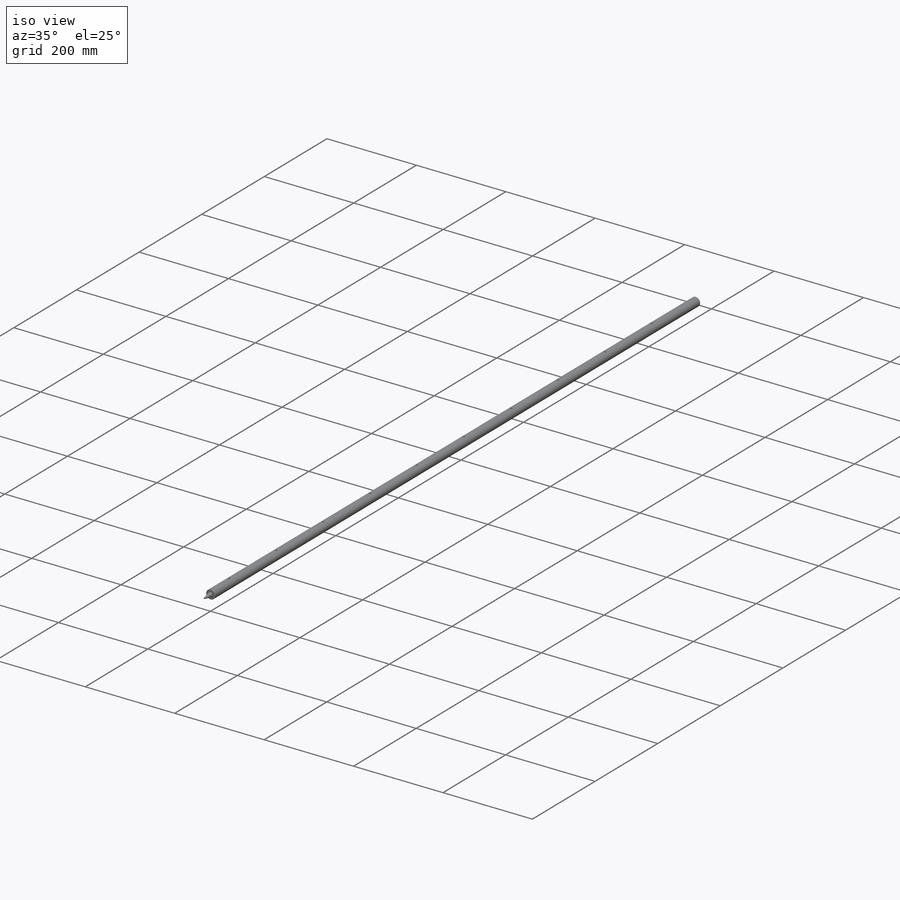
[diagram: iso view]
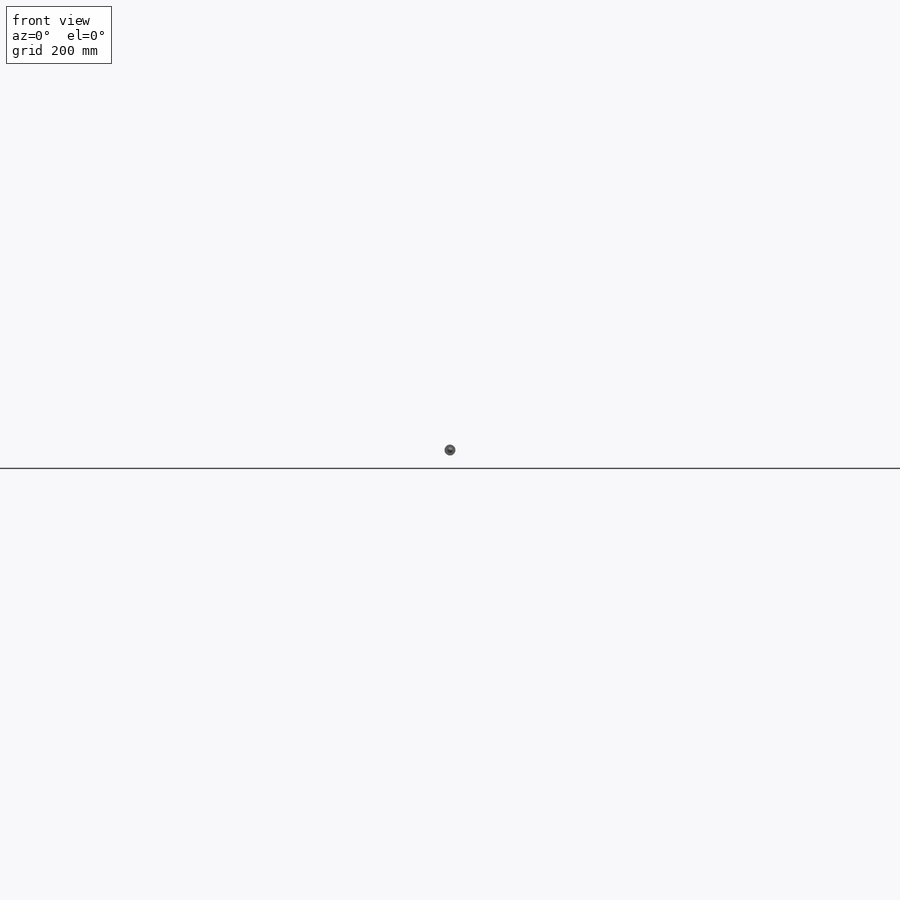
[diagram: front view]
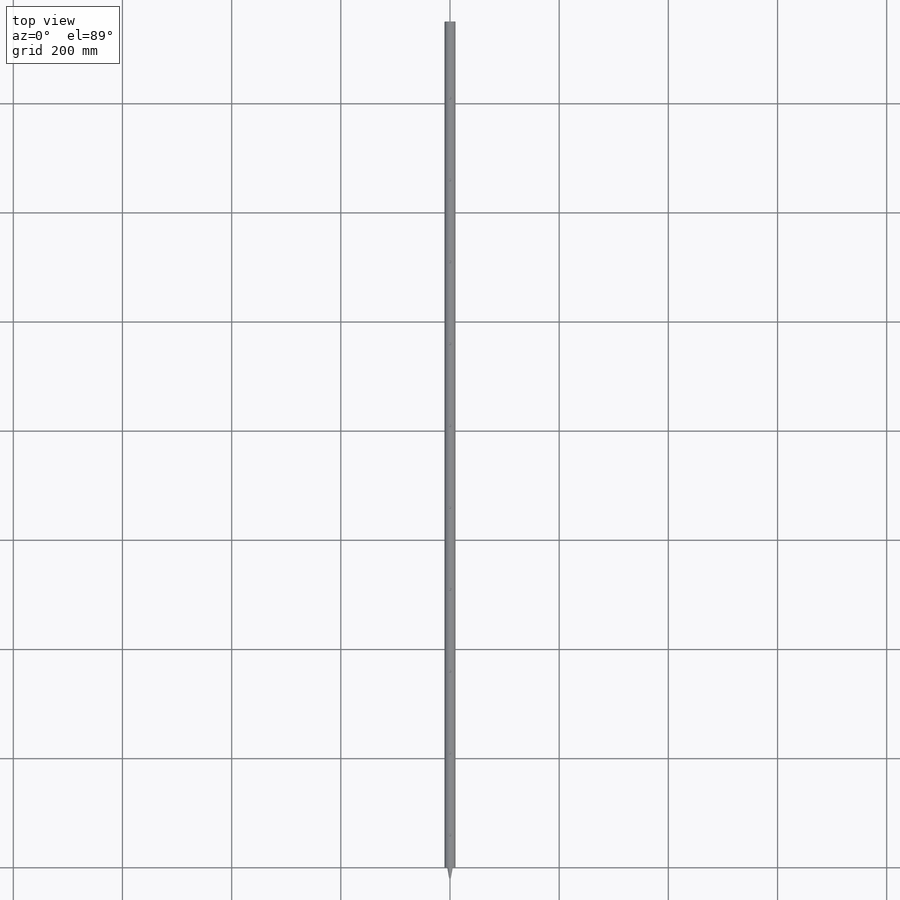
[diagram: top view]
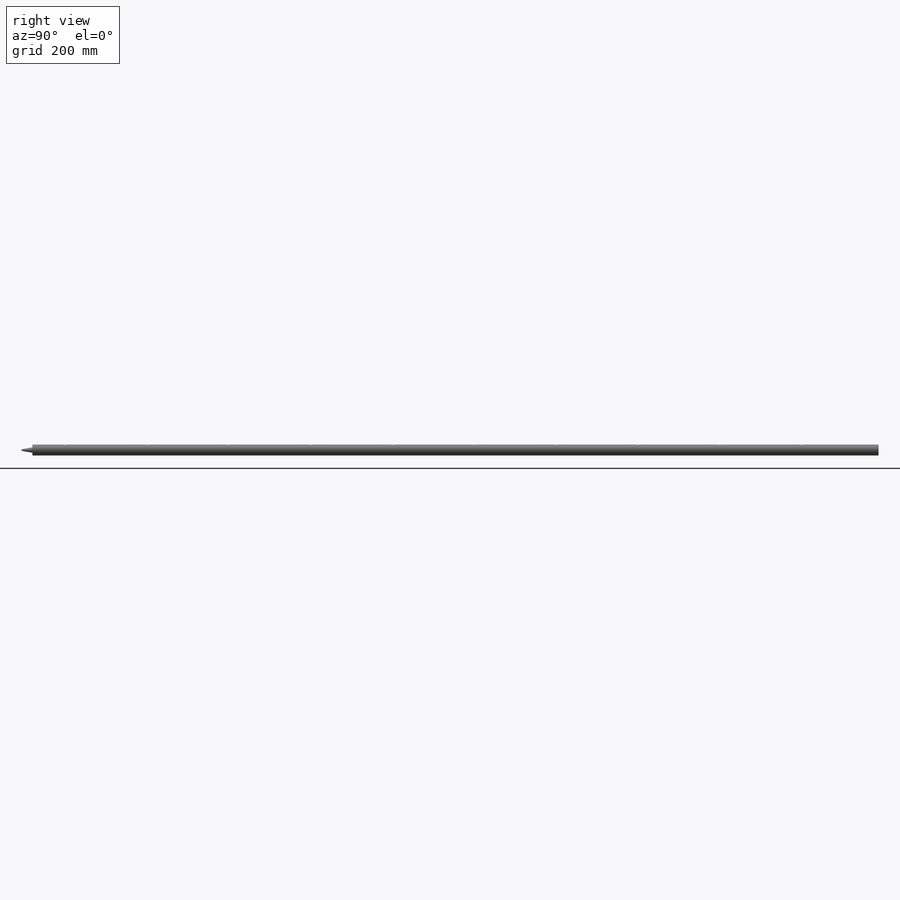
[diagram: right view]
SOLIDWORKS PART (.sldprt)
format: sldprt  version: not decoded by parser v0  size: 267,264 bytes
history: native  units: mm
features: sketch x5, material x1, revolve x1, fillet x1, hole x1, thread x1, pattern_linear x1 (+11 scaffold rows collapsed)
feature tree (22):
  scaffold x11  (default folders/planes/origin — collapsed)
  material  "6061-T6 (SS)"
  sketch  "Sketch1"  dims[c1.D7=762.0mm c1.D1=38.1mm c1.D2=~11.11504mm c1.D3=76.2mm c1.D4=19.05mm c1.D5=20.0mm c1.D6=7.62mm c1.D8=20.0mm c1.D9=10.0mm c1.D10=~10.210714mm c2.D10=100.0deg c2.D2=1550.0mm]
  revolve  "Revolve1"  Angle=360deg
  fillet  "Fillet1"  Radius=0.508mm
  sketch  "Sketch2"  dims[D1=652.025mm D2=457.2mm]
  sketch  "Sketch4"
  hole  "M6x1.0 Tapped Hole1"  Diameter=5mm Depth=15mm
  sketch  "3DSketch1"
  sketch  "Sketch3"  dims[hole-wizard template sketch: 47 standard entries collapsed; hole parameters kept: c15.Tap Drill Depth=15.0mm c15.D3=~14.816244mm c15.Drill Angle=118.0deg]
  thread  "Hole Thread1"  Diameter=12mm  [1 undecoded]
  pattern_linear  "LPattern1"  Count1=8 Count2=3 Spacing1=150mm Spacing2=150mm
decode coverage: 8 of 10 modeling features carry decoded parameters
note: ~ marks probable driven/reference dimensions
note: 1 parameter value undecoded
note: suppression state not decoded; provenance and decode notes live in map.json
